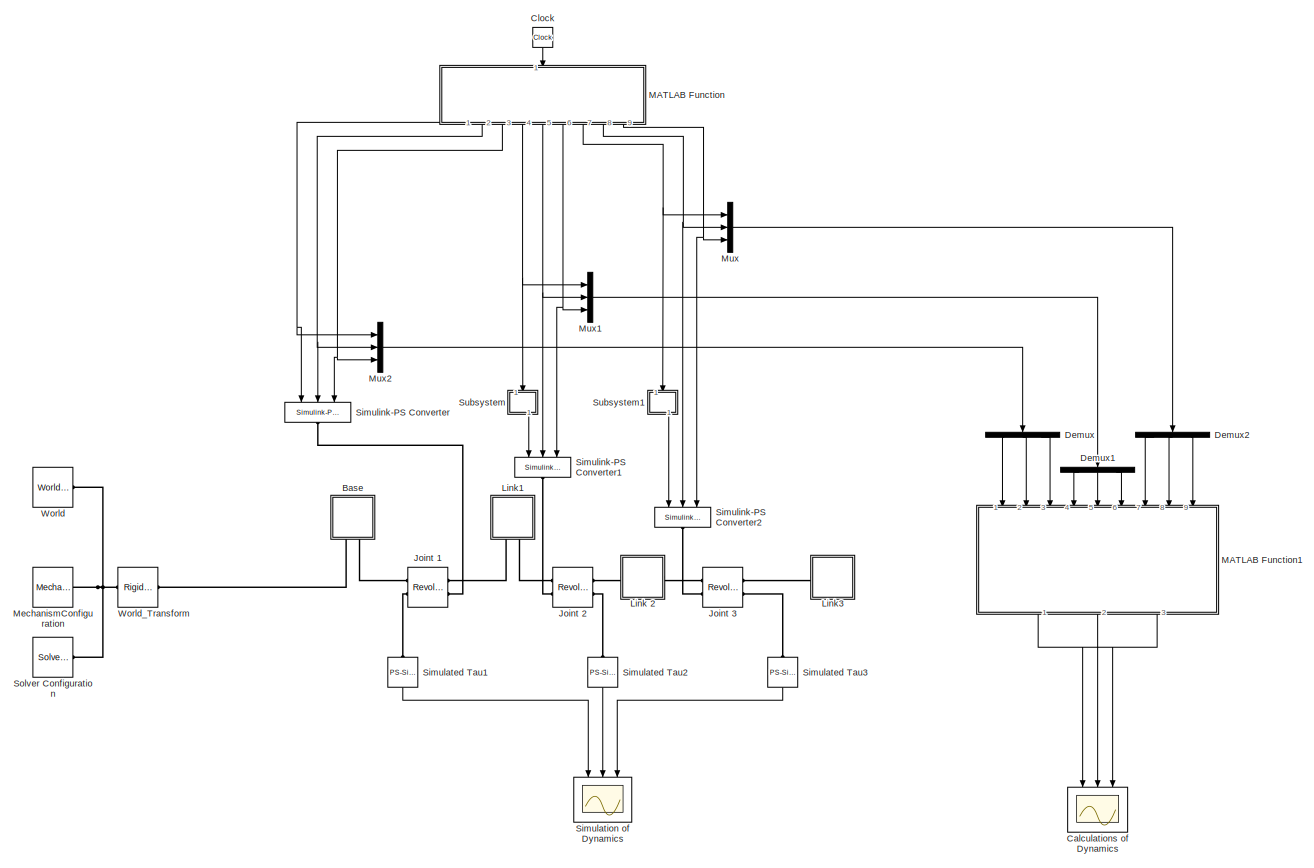
[diagram: root canvas - part 1/1, most of the canvas]
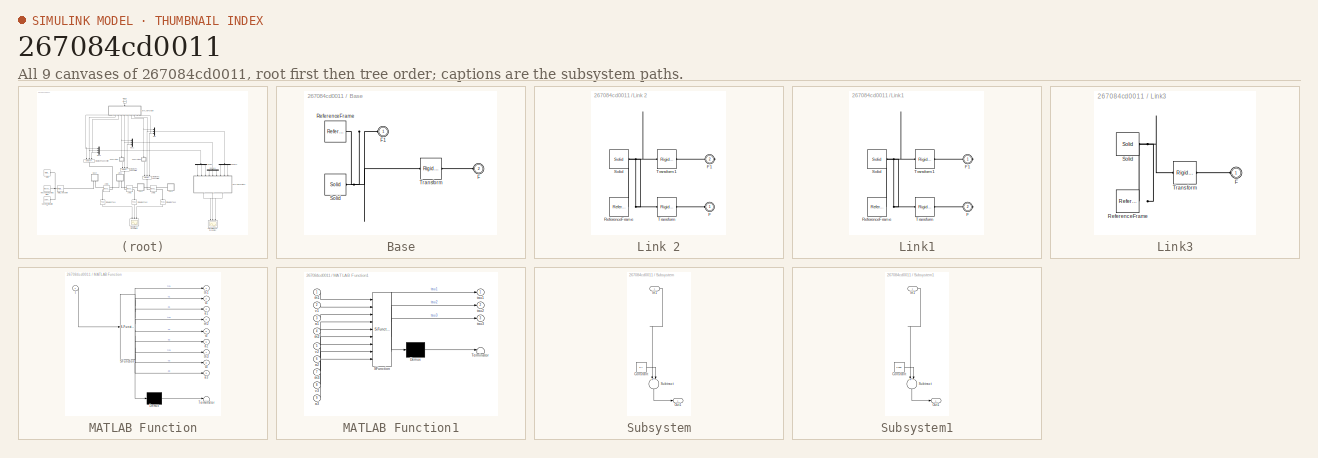
[diagram: thumbnail index - all 9 canvases of the model, root first then tree order]
MODEL slx_267084cd0011
KIND model
CONFIG AbsTol = auto
CONFIG EnableMultiTasking = off
CONFIG FixedStep = auto
CONFIG MaxStep = auto
CONFIG MinStep = auto
CONFIG RelTol = 1e-3
CONFIG SampleTimeConstraint = Unconstrained
CONFIG Solver = VariableStepAuto
CONFIG SolverName = VariableStepAuto
CONFIG StartTime = 0.0
CONFIG StopTime = 3*pi/2
WORKSPACE source: external: MAT-File  (data not in archive)
BLOCK [SubSystem] Base
  Ports = [0, 0, 0, 0, 0, 2]
  RequestExecContextInheritance = off
BLOCK [PMIOPort] Base/F
  Port = 2
  Side = Left
BLOCK [PMIOPort] Base/F1
  Side = Left
BLOCK [Reference] Base/ReferenceFrame  REF=sm_lib/Frames and
Transforms/Reference
Frame
  Ports = [0, 0, 0, 0, 0, 0, 1]
  SourceBlock = sm_lib/Frames and\nTransforms/Reference\nFrame
  SourceProductBaseCode = MS
  SourceProductName = Simscape Multibody
  SourceType = Reference\nFrame
BLOCK [Reference] Base/Solid  REF=sm_lib/Body Elements/Solid
  Ports = [0, 0, 0, 0, 0, 0, 1]
  SourceBlock = sm_lib/Body Elements/Solid
  SourceProductBaseCode = MS
  SourceProductName = Simscape Multibody
  SourceType = Solid
BLOCK [Reference] Base/Transform  REF=sm_lib/Frames and
Transforms/Rigid
Transform
  Ports = [0, 0, 0, 0, 0, 1, 1]
  SourceBlock = sm_lib/Frames and\nTransforms/Rigid\nTransform
  SourceProductBaseCode = MS
  SourceProductName = Simscape Multibody
  SourceType = Rigid\nTransform
BLOCK [Scope] Calculations of Dynamics 
  Floating = off
  NumInputPorts = 3
  Ports = [3]
  ScopeSpecificationString = Simulink.scopes.TimeScopeBlockCfg('CurrentConfiguration', extmgr.ConfigurationSet(extmgr.Configuration('Core','General UI',true,'FigureColor',[1 1 1]),extmgr.Configuration('Core','Source UI',true),extmgr.Configuration('Sources','WiredSimulink',true,'DataLoggingVariableName','ScopeData1'),extmgr.Configuration('Visuals','Time Domain',true,'SerializedDisplays',{struct('MinYLimReal','-0.04655','MaxYLi...<+3306ch>
BLOCK [Clock] Clock
BLOCK [Demux] Demux
  DisplayOption = bar
  Outputs = 3
  Ports = [1, 3]
BLOCK [Demux] Demux1
  DisplayOption = bar
  Outputs = 3
  Ports = [1, 3]
BLOCK [Demux] Demux2
  DisplayOption = bar
  Outputs = 3
  Ports = [1, 3]
BLOCK [Reference] Joint 1  REF=sm_lib/Joints/Revolute Joint
  Ports = [0, 0, 0, 0, 0, 2, 2]
  SourceBlock = sm_lib/Joints/Revolute Joint
  SourceProductBaseCode = MS
  SourceProductName = Simscape Multibody
  SourceType = Revolute Joint
BLOCK [Reference] Joint 2  REF=sm_lib/Joints/Revolute Joint
  Ports = [0, 0, 0, 0, 0, 2, 2]
  SourceBlock = sm_lib/Joints/Revolute Joint
  SourceProductBaseCode = MS
  SourceProductName = Simscape Multibody
  SourceType = Revolute Joint
BLOCK [Reference] Joint 3  REF=sm_lib/Joints/Revolute Joint
  Ports = [0, 0, 0, 0, 0, 2, 2]
  SourceBlock = sm_lib/Joints/Revolute Joint
  SourceProductBaseCode = MS
  SourceProductName = Simscape Multibody
  SourceType = Revolute Joint
BLOCK [SubSystem] Link 2
  Ports = [0, 0, 0, 0, 0, 1, 1]
  RequestExecContextInheritance = off
BLOCK [PMIOPort] Link 2/F
  Side = Left
BLOCK [PMIOPort] Link 2/F1
  Port = 2
  Side = Right
BLOCK [Reference] Link 2/ReferenceFrame  REF=sm_lib/Frames and
Transforms/Reference
Frame
  Ports = [0, 0, 0, 0, 0, 0, 1]
  SourceBlock = sm_lib/Frames and\nTransforms/Reference\nFrame
  SourceProductBaseCode = MS
  SourceProductName = Simscape Multibody
  SourceType = Reference\nFrame
BLOCK [Reference] Link 2/Solid  REF=sm_lib/Body Elements/Solid
  Ports = [0, 0, 0, 0, 0, 0, 1]
  SourceBlock = sm_lib/Body Elements/Solid
  SourceProductBaseCode = MS
  SourceProductName = Simscape Multibody
  SourceType = Solid
BLOCK [Reference] Link 2/Transform  REF=sm_lib/Frames and
Transforms/Rigid
Transform
  Ports = [0, 0, 0, 0, 0, 1, 1]
  SourceBlock = sm_lib/Frames and\nTransforms/Rigid\nTransform
  SourceProductBaseCode = MS
  SourceProductName = Simscape Multibody
  SourceType = Rigid\nTransform
BLOCK [Reference] Link 2/Transform1  REF=sm_lib/Frames and
Transforms/Rigid
Transform
  Ports = [0, 0, 0, 0, 0, 1, 1]
  SourceBlock = sm_lib/Frames and\nTransforms/Rigid\nTransform
  SourceProductBaseCode = MS
  SourceProductName = Simscape Multibody
  SourceType = Rigid\nTransform
BLOCK [SubSystem] Link1
  Ports = [0, 0, 0, 0, 0, 0, 2]
  RequestExecContextInheritance = off
BLOCK [PMIOPort] Link1/F
  Port = 2
  Side = Right
BLOCK [PMIOPort] Link1/F1
  Side = Right
BLOCK [Reference] Link1/ReferenceFrame  REF=sm_lib/Frames and
Transforms/Reference
Frame
  Ports = [0, 0, 0, 0, 0, 0, 1]
  SourceBlock = sm_lib/Frames and\nTransforms/Reference\nFrame
  SourceProductBaseCode = MS
  SourceProductName = Simscape Multibody
  SourceType = Reference\nFrame
BLOCK [Reference] Link1/Solid  REF=sm_lib/Body Elements/Solid
  Ports = [0, 0, 0, 0, 0, 0, 1]
  SourceBlock = sm_lib/Body Elements/Solid
  SourceProductBaseCode = MS
  SourceProductName = Simscape Multibody
  SourceType = Solid
BLOCK [Reference] Link1/Transform  REF=sm_lib/Frames and
Transforms/Rigid
Transform
  Ports = [0, 0, 0, 0, 0, 1, 1]
  SourceBlock = sm_lib/Frames and\nTransforms/Rigid\nTransform
  SourceProductBaseCode = MS
  SourceProductName = Simscape Multibody
  SourceType = Rigid\nTransform
BLOCK [Reference] Link1/Transform1  REF=sm_lib/Frames and
Transforms/Rigid
Transform
  Ports = [0, 0, 0, 0, 0, 1, 1]
  SourceBlock = sm_lib/Frames and\nTransforms/Rigid\nTransform
  SourceProductBaseCode = MS
  SourceProductName = Simscape Multibody
  SourceType = Rigid\nTransform
BLOCK [SubSystem] Link3
  Ports = [0, 0, 0, 0, 0, 1]
  RequestExecContextInheritance = off
BLOCK [PMIOPort] Link3/F
  Side = Left
BLOCK [Reference] Link3/ReferenceFrame  REF=sm_lib/Frames and
Transforms/Reference
Frame
  Ports = [0, 0, 0, 0, 0, 0, 1]
  SourceBlock = sm_lib/Frames and\nTransforms/Reference\nFrame
  SourceProductBaseCode = MS
  SourceProductName = Simscape Multibody
  SourceType = Reference\nFrame
BLOCK [Reference] Link3/Solid  REF=sm_lib/Body Elements/Solid
  Ports = [0, 0, 0, 0, 0, 0, 1]
  SourceBlock = sm_lib/Body Elements/Solid
  SourceProductBaseCode = MS
  SourceProductName = Simscape Multibody
  SourceType = Solid
BLOCK [Reference] Link3/Transform  REF=sm_lib/Frames and
Transforms/Rigid
Transform
  Ports = [0, 0, 0, 0, 0, 1, 1]
  SourceBlock = sm_lib/Frames and\nTransforms/Rigid\nTransform
  SourceProductBaseCode = MS
  SourceProductName = Simscape Multibody
  SourceType = Rigid\nTransform
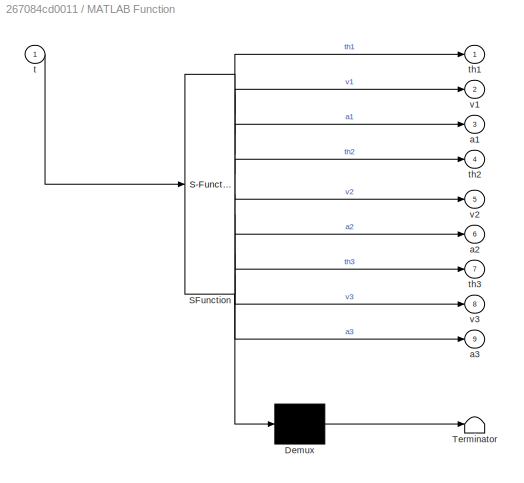
BLOCK [SubSystem] MATLAB Function
  ErrorFcn = Stateflow.Translate.translate
  PermitHierarchicalResolution = ExplicitOnly
  Ports = [1, 9]
  RequestExecContextInheritance = off
  SFBlockType = MATLAB Function
  TreatAsAtomicUnit = on
BLOCK [Demux] MATLAB Function/ Demux 
  Outputs = 1
  Ports = [1, 1]
BLOCK [S-Function] MATLAB Function/ SFunction 
  EnableBusSupport = on
  FunctionName = sf_sfun
  PortCounts = [1 10]
  Ports = [1, 10]
  SFcnIsStateOwnerBlock = off
  SFunctionDeploymentMode = off
  Tag = Stateflow S-Function CrawlerValidation 8
BLOCK [Terminator] MATLAB Function/ Terminator 
BLOCK [Outport] MATLAB Function/a1
  IconDisplay = Port number
  Port = 3
BLOCK [Outport] MATLAB Function/a2
  IconDisplay = Port number
  Port = 6
BLOCK [Outport] MATLAB Function/a3
  IconDisplay = Port number
  Port = 9
BLOCK [Inport] MATLAB Function/t
  IconDisplay = Port number
BLOCK [Outport] MATLAB Function/th1
  IconDisplay = Port number
BLOCK [Outport] MATLAB Function/th2
  IconDisplay = Port number
  Port = 4
BLOCK [Outport] MATLAB Function/th3
  IconDisplay = Port number
  Port = 7
BLOCK [Outport] MATLAB Function/v1
  IconDisplay = Port number
  Port = 2
BLOCK [Outport] MATLAB Function/v2
  IconDisplay = Port number
  Port = 5
BLOCK [Outport] MATLAB Function/v3
  IconDisplay = Port number
  Port = 8
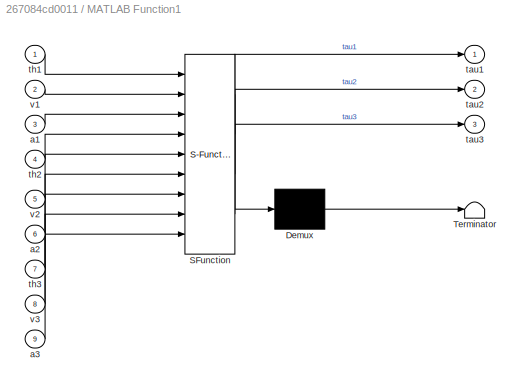
BLOCK [SubSystem] MATLAB Function1
  ErrorFcn = Stateflow.Translate.translate
  PermitHierarchicalResolution = ExplicitOnly
  Ports = [9, 3]
  RequestExecContextInheritance = off
  SFBlockType = MATLAB Function
  TreatAsAtomicUnit = on
BLOCK [Demux] MATLAB Function1/ Demux 
  Outputs = 1
  Ports = [1, 1]
BLOCK [S-Function] MATLAB Function1/ SFunction 
  EnableBusSupport = on
  FunctionName = sf_sfun
  PortCounts = [9 4]
  Ports = [9, 4]
  SFcnIsStateOwnerBlock = off
  SFunctionDeploymentMode = off
  Tag = Stateflow S-Function CrawlerValidation 1
BLOCK [Terminator] MATLAB Function1/ Terminator 
BLOCK [Inport] MATLAB Function1/a1
  IconDisplay = Port number
  Port = 3
BLOCK [Inport] MATLAB Function1/a2
  IconDisplay = Port number
  Port = 6
BLOCK [Inport] MATLAB Function1/a3
  IconDisplay = Port number
  Port = 9
BLOCK [Outport] MATLAB Function1/tau1
  IconDisplay = Port number
BLOCK [Outport] MATLAB Function1/tau2
  IconDisplay = Port number
  Port = 2
BLOCK [Outport] MATLAB Function1/tau3
  IconDisplay = Port number
  Port = 3
BLOCK [Inport] MATLAB Function1/th1
  IconDisplay = Port number
BLOCK [Inport] MATLAB Function1/th2
  IconDisplay = Port number
  Port = 4
BLOCK [Inport] MATLAB Function1/th3
  IconDisplay = Port number
  Port = 7
BLOCK [Inport] MATLAB Function1/v1
  IconDisplay = Port number
  Port = 2
BLOCK [Inport] MATLAB Function1/v2
  IconDisplay = Port number
  Port = 5
BLOCK [Inport] MATLAB Function1/v3
  IconDisplay = Port number
  Port = 8
BLOCK [Reference] MechanismConfiguration  REF=sm_lib/Utilities/Mechanism
Configuration
  Ports = [0, 0, 0, 0, 0, 0, 1]
  SourceBlock = sm_lib/Utilities/Mechanism\nConfiguration
  SourceProductBaseCode = MS
  SourceProductName = Simscape Multibody
  SourceType = Mechanism\nConfiguration
BLOCK [Mux] Mux
  DisplayOption = bar
  Inputs = 3
  Ports = [3, 1]
BLOCK [Mux] Mux1
  DisplayOption = bar
  Inputs = 3
  Ports = [3, 1]
BLOCK [Mux] Mux2
  DisplayOption = bar
  Inputs = 3
  Ports = [3, 1]
BLOCK [Reference] Simulated Tau1  REF=nesl_utility/PS-Simulink
Converter
  Ports = [0, 1, 0, 0, 0, 1]
  SourceBlock = nesl_utility/PS-Simulink\nConverter
  SourceProductBaseCode = SS
  SourceProductName = Simscape
  SourceType = PS-Simulink\nConverter
BLOCK [Reference] Simulated Tau2  REF=nesl_utility/PS-Simulink
Converter
  Ports = [0, 1, 0, 0, 0, 1]
  SourceBlock = nesl_utility/PS-Simulink\nConverter
  SourceProductBaseCode = SS
  SourceProductName = Simscape
  SourceType = PS-Simulink\nConverter
BLOCK [Reference] Simulated Tau3  REF=nesl_utility/PS-Simulink
Converter
  Ports = [0, 1, 0, 0, 0, 1]
  SourceBlock = nesl_utility/PS-Simulink\nConverter
  SourceProductBaseCode = SS
  SourceProductName = Simscape
  SourceType = PS-Simulink\nConverter
BLOCK [Scope] Simulation of Dynamics 
  Floating = off
  NumInputPorts = 3
  Ports = [3]
  ScopeSpecificationString = Simulink.scopes.TimeScopeBlockCfg('CurrentConfiguration', extmgr.ConfigurationSet(extmgr.Configuration('Core','General UI',true,'FigureColor',[1 1 1]),extmgr.Configuration('Core','Source UI',true),extmgr.Configuration('Sources','WiredSimulink',true),extmgr.Configuration('Visuals','Time Domain',true,'SerializedDisplays',{struct('MinYLimReal','-0.04552','MaxYLimReal','0.04554','YLabelReal','','MinYL...<+3465ch>
BLOCK [Reference] Simulink-PS Converter  REF=nesl_utility/Simulink-PS
Converter
  Ports = [3, 0, 0, 0, 0, 0, 1]
  SourceBlock = nesl_utility/Simulink-PS\nConverter
  SourceProductBaseCode = SS
  SourceProductName = Simscape
  SourceType = Simulink-PS\nConverter
BLOCK [Reference] Simulink-PS Converter1  REF=nesl_utility/Simulink-PS
Converter
  Ports = [3, 0, 0, 0, 0, 0, 1]
  SourceBlock = nesl_utility/Simulink-PS\nConverter
  SourceProductBaseCode = SS
  SourceProductName = Simscape
  SourceType = Simulink-PS\nConverter
BLOCK [Reference] Simulink-PS Converter2  REF=nesl_utility/Simulink-PS
Converter
  Ports = [3, 0, 0, 0, 0, 0, 1]
  SourceBlock = nesl_utility/Simulink-PS\nConverter
  SourceProductBaseCode = SS
  SourceProductName = Simscape
  SourceType = Simulink-PS\nConverter
BLOCK [Reference] Solver Configuration  REF=nesl_utility/Solver
Configuration
  Ports = [0, 0, 0, 0, 0, 0, 1]
  SourceBlock = nesl_utility/Solver\nConfiguration
  SourceProductBaseCode = SS
  SourceProductName = Simscape
  SourceType = Solver\nConfiguration
BLOCK [SubSystem] Subsystem
  Ports = [1, 1]
  RequestExecContextInheritance = off
BLOCK [Constant] Subsystem/Constant
  Value = 0.7
BLOCK [Inport] Subsystem/In1
  IconDisplay = Port number
BLOCK [Outport] Subsystem/Out1
  IconDisplay = Port number
BLOCK [Sum] Subsystem/Subtract
  InputSameDT = off
  Inputs = +-
  OutDataTypeStr = Inherit: Inherit via internal rule
  Ports = [2, 1]
  SaturateOnIntegerOverflow = off
BLOCK [SubSystem] Subsystem1
  Ports = [1, 1]
  RequestExecContextInheritance = off
BLOCK [Constant] Subsystem1/Constant
  Value = 2.805
BLOCK [Inport] Subsystem1/In1
  IconDisplay = Port number
BLOCK [Outport] Subsystem1/Out1
  IconDisplay = Port number
BLOCK [Sum] Subsystem1/Subtract
  InputSameDT = off
  Inputs = +-
  OutDataTypeStr = Inherit: Inherit via internal rule
  Ports = [2, 1]
  SaturateOnIntegerOverflow = off
BLOCK [Reference] World  REF=sm_lib/Frames and
Transforms/World Frame
  Ports = [0, 0, 0, 0, 0, 0, 1]
  SourceBlock = sm_lib/Frames and\nTransforms/World Frame
  SourceProductBaseCode = MS
  SourceProductName = Simscape Multibody
  SourceType = World Frame
BLOCK [Reference] World_Transform  REF=sm_lib/Frames and
Transforms/Rigid
Transform
  Ports = [0, 0, 0, 0, 0, 1, 1]
  SourceBlock = sm_lib/Frames and\nTransforms/Rigid\nTransform
  SourceProductBaseCode = MS
  SourceProductName = Simscape Multibody
  SourceType = Rigid\nTransform
LINE Clock:1 -> MATLAB Function:1
LINE Demux1:1 -> MATLAB Function1:4
LINE Demux1:2 -> MATLAB Function1:5
LINE Demux1:3 -> MATLAB Function1:6
LINE Demux2:1 -> MATLAB Function1:7
LINE Demux2:2 -> MATLAB Function1:8
LINE Demux2:3 -> MATLAB Function1:9
LINE Demux:1 -> MATLAB Function1:1
LINE Demux:2 -> MATLAB Function1:2
LINE Demux:3 -> MATLAB Function1:3
LINE MATLAB Function1:1 -> Calculations of Dynamics :1
LINE MATLAB Function1:2 -> Calculations of Dynamics :2
LINE MATLAB Function1:3 -> Calculations of Dynamics :3
NET MATLAB Function:1 -> Mux2:1, Simulink-PS Converter:1
NET MATLAB Function:2 -> Mux2:2, Simulink-PS Converter:2
NET MATLAB Function:3 -> Mux2:3, Simulink-PS Converter:3
NET MATLAB Function:4 -> Mux1:1, Subsystem:1
NET MATLAB Function:5 -> Mux1:2, Simulink-PS Converter1:2
NET MATLAB Function:6 -> Mux1:3, Simulink-PS Converter1:3
NET MATLAB Function:7 -> Mux:1, Subsystem1:1
NET MATLAB Function:8 -> Mux:2, Simulink-PS Converter2:2
NET MATLAB Function:9 -> Mux:3, Simulink-PS Converter2:3
LINE Mux1:1 -> Demux1:1
LINE Mux2:1 -> Demux:1
LINE Mux:1 -> Demux2:1
LINE Simulated Tau1:1 -> Simulation of Dynamics :1
LINE Simulated Tau2:1 -> Simulation of Dynamics :2
LINE Simulated Tau3:1 -> Simulation of Dynamics :3
LINE Subsystem/Constant:1 -> Subsystem/Subtract:2
LINE Subsystem/In1:1 -> Subsystem/Subtract:1
LINE Subsystem/Subtract:1 -> Subsystem/Out1:1
LINE Subsystem1/Constant:1 -> Subsystem1/Subtract:2
LINE Subsystem1/In1:1 -> Subsystem1/Subtract:1
LINE Subsystem1/Subtract:1 -> Subsystem1/Out1:1
LINE Subsystem1:1 -> Simulink-PS Converter2:1
LINE Subsystem:1 -> Simulink-PS Converter1:1
PNET net1: Base/F1:RConn1 -- Base/ReferenceFrame:RConn1 -- Base/Solid:RConn1 -- Base/Transform:LConn1
PLINE Base/F:RConn1 -- Base/Transform:RConn1
PLINE Base:LConn1 -- World_Transform:RConn1
PLINE Base:LConn2 -- Joint 1:RConn1
PLINE Joint 1:LConn1 -- Link1:RConn1
PLINE Joint 1:LConn2 -- Simulink-PS Converter:RConn1
PLINE Joint 1:RConn2 -- Simulated Tau1:LConn1
PLINE Joint 2:LConn1 -- Link1:RConn2
PLINE Joint 2:LConn2 -- Simulink-PS Converter1:RConn1
PLINE Joint 2:RConn1 -- Link 2:LConn1
PLINE Joint 2:RConn2 -- Simulated Tau2:LConn1
PLINE Joint 3:LConn1 -- Link 2:RConn1
PLINE Joint 3:LConn2 -- Simulink-PS Converter2:RConn1
PLINE Joint 3:RConn1 -- Link3:LConn1
PLINE Joint 3:RConn2 -- Simulated Tau3:LConn1
PLINE Link 2/F1:RConn1 -- Link 2/Transform1:RConn1
PLINE Link 2/F:RConn1 -- Link 2/Transform:RConn1
PNET net2: Link 2/ReferenceFrame:RConn1 -- Link 2/Solid:RConn1 -- Link 2/Transform1:LConn1 -- Link 2/Transform:LConn1
PLINE Link1/F1:RConn1 -- Link1/Transform1:RConn1
PLINE Link1/F:RConn1 -- Link1/Transform:RConn1
PNET net3: Link1/ReferenceFrame:RConn1 -- Link1/Solid:RConn1 -- Link1/Transform1:LConn1 -- Link1/Transform:LConn1
PLINE Link3/F:RConn1 -- Link3/Transform:RConn1
PNET net4: Link3/ReferenceFrame:RConn1 -- Link3/Solid:RConn1 -- Link3/Transform:LConn1
PNET net5: MechanismConfiguration:RConn1 -- Solver Configuration:RConn1 -- World:RConn1 -- World_Transform:LConn1
note: NET lines group one-source signal fan-out (src -> all destinations, sorted); 1:1 wires keep LINE; PNET lines group multi-terminal physical nets as a canonical sorted terminal list (undirected conserving connections); 2-terminal nets keep the pairwise PLINE form
CHART MATLAB Function1 states=1 transitions=1
  STATE_LABEL 'eML_blk_kernel()'
  STATE_LABEL 'SCRIPT:\nfunction [tau1, tau2, tau3] = DynamicsFunction(th1, v1, a1, th2, v2, a2, th3, v3, a3)\n \n \n \n \n \ntau1 = (1316333585536490769777353*a1)/90071992547409920000000000 - (3812649803609637*a1*sin(2*th2))/151115727451828646838272 - (7116720196837393015116749*a1*cos(2*th2 + 2*th3))/2814749767106560000000000000 - (2833797679040417*a1*sin(2*th2 + 2*th3))/18889465931478580854784 - (2110162899558835*a2*...<+2707ch>'
CHART MATLAB Function states=1 transitions=1
  STATE_LABEL 'eML_blk_kernel()'
  STATE_LABEL 'SCRIPT:\nfunction [th1,v1,a1,th2,v2,a2,th3,v3,a3] = fcn(t)\n\n% th1=0;\n% v1=0;\n% a1=0;\n\nth1=sin(t);\nv1=cos(t);\na1=-sin(t);\n\n% th2=sin(t);\n% v2=cos(t);\n% a2=-sin(t);\n%\nth2=pi/2;\nv2=0;\na2=0;\n\n% th3=pi/4;\n% v3=0;\n% a3=0;\n\nth3=sin(t);\nv3=cos(t);\na3=-sin(t);'
